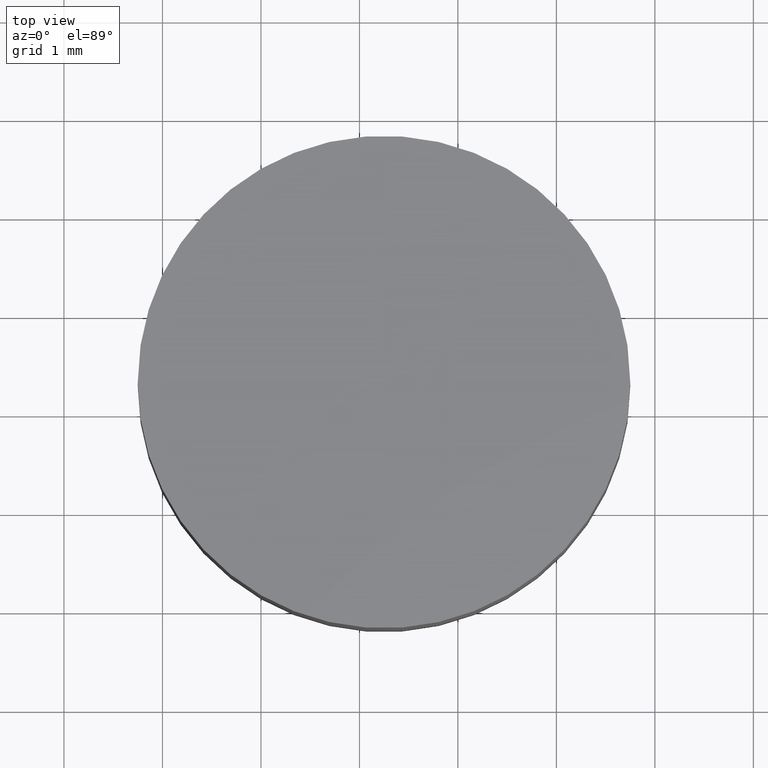
[diagram: clean part render]
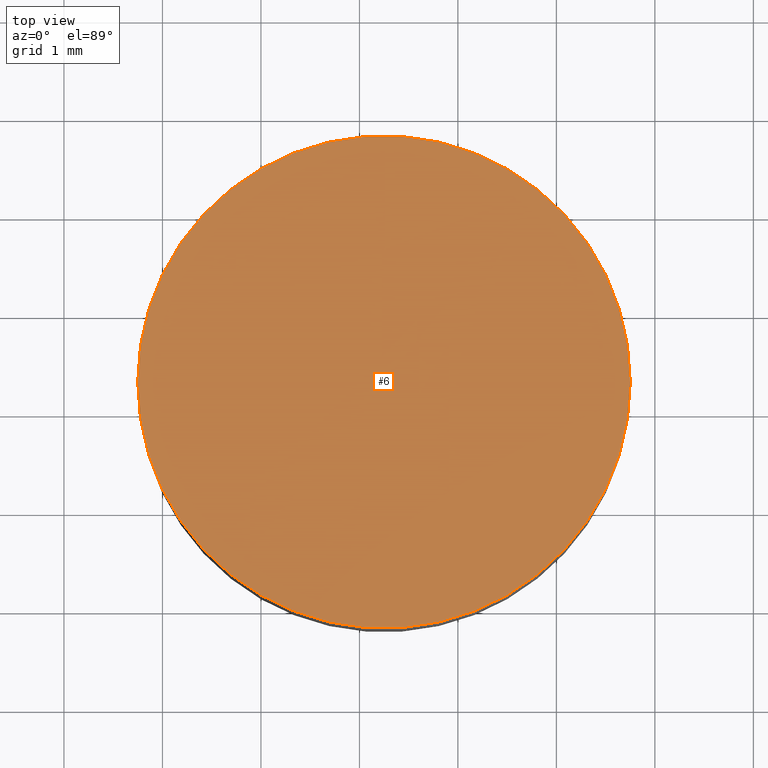
[diagram: same view with one face highlighted and labeled with its STEP entity id]
A machine part, top view. The second image highlights one B-rep face of the part: STEP entity #6.
In plain terms, the highlighted planar face has unit normal (0, 0, 1).
Its self-contained STEP definition (entity closure, byte-faithful):
#4 = VERTEX_POINT ( 'NONE', #33 ) ;
#6 = ADVANCED_FACE ( 'NONE', ( #100 ), #63, .T. ) ;
#7 = DIRECTION ( 'NONE',  ( 0.0000000000000000000, 0.0000000000000000000, 1.000000000000000000 ) ) ;
#19 = CARTESIAN_POINT ( 'NONE',  ( 17.74958715517702100, 12.31264836690532000, 2.299999999999999800 ) ) ;
#31 = DIRECTION ( 'NONE',  ( 0.0000000000000000000, 0.0000000000000000000, 1.000000000000000000 ) ) ;
#33 = CARTESIAN_POINT ( 'NONE',  ( 22.74958715517701800, 12.31264836690532000, 2.299999999999999800 ) ) ;
#45 = CARTESIAN_POINT ( 'NONE',  ( 20.24958715517702100, 12.31264836690532000, 2.299999999999999800 ) ) ;
#48 = DIRECTION ( 'NONE',  ( 1.000000000000000000, 0.0000000000000000000, -0.0000000000000000000 ) ) ;
#52 = ORIENTED_EDGE ( 'NONE', *, *, #61, .T. ) ;
#60 = VERTEX_POINT ( 'NONE', #19 ) ;
#61 = EDGE_CURVE ( 'NONE', #4, #60, #140, .T. ) ;
#62 = AXIS2_PLACEMENT_3D ( 'NONE', #97, #7, #68 ) ;
#63 = PLANE ( 'NONE',  #71 ) ;
#68 = DIRECTION ( 'NONE',  ( 1.000000000000000000, 0.0000000000000000000, 0.0000000000000000000 ) ) ;
#71 = AXIS2_PLACEMENT_3D ( 'NONE', #134, #31, #48 ) ;
#79 = DIRECTION ( 'NONE',  ( 1.000000000000000000, 0.0000000000000000000, 0.0000000000000000000 ) ) ;
#85 = AXIS2_PLACEMENT_3D ( 'NONE', #45, #136, #79 ) ;
#88 = CIRCLE ( 'NONE', #85, 2.499999999999998700 ) ;
#92 = ORIENTED_EDGE ( 'NONE', *, *, #120, .T. ) ;
#97 = CARTESIAN_POINT ( 'NONE',  ( 20.24958715517702100, 12.31264836690532000, 2.299999999999999800 ) ) ;
#100 = FACE_OUTER_BOUND ( 'NONE', #101, .T. ) ;
#101 = EDGE_LOOP ( 'NONE', ( #92, #52 ) ) ;
#120 = EDGE_CURVE ( 'NONE', #60, #4, #88, .T. ) ;
#134 = CARTESIAN_POINT ( 'NONE',  ( 20.24958715517702100, 12.31264836690532000, 2.299999999999999800 ) ) ;
#136 = DIRECTION ( 'NONE',  ( 0.0000000000000000000, 0.0000000000000000000, 1.000000000000000000 ) ) ;
#140 = CIRCLE ( 'NONE', #62, 2.499999999999998700 ) ;